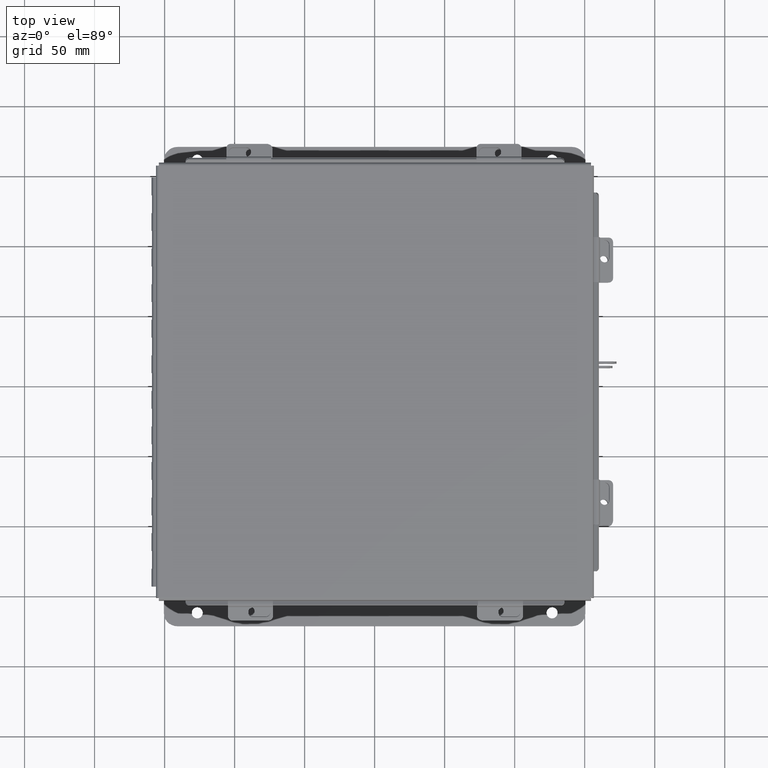
[diagram: clean part render]
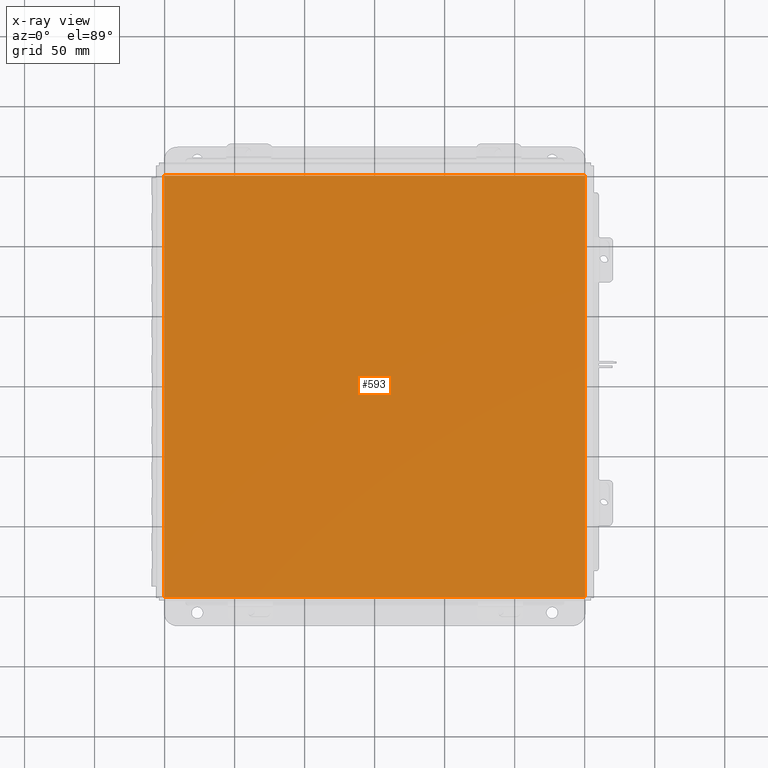
[diagram: x-ray — body ghosted, one internal face saturated and labeled with its STEP entity id]
A machine part, top view, then the same camera in x-ray: the body is ghosted and one INTERNAL B-rep face — a face not visible from any outside direction — is saturated and labeled: STEP entity #593.
In plain terms, the highlighted planar face has unit normal (0, 0, -1).
Its self-contained STEP definition (entity closure, byte-faithful):
#593 = ADVANCED_FACE ( 'NONE', ( #3593 ), #3912, .F. ) ;
#1015 = LINE ( 'NONE', #14169, #15210 ) ;
#1844 = DIRECTION ( 'NONE',  ( -0.0000000000000000000, 1.000000000000000000, -0.0000000000000000000 ) ) ;
#2203 = EDGE_CURVE ( 'NONE', #11765, #3389, #14765, .T. ) ;
#2423 = DIRECTION ( 'NONE',  ( -0.0000000000000000000, -1.000000000000000000, -0.0000000000000000000 ) ) ;
#2581 = CARTESIAN_POINT ( 'NONE',  ( -5.999999999999998200, -5.925300000000000000, 0.0000000000000000000 ) ) ;
#2682 = DIRECTION ( 'NONE',  ( -1.000000000000000000, -0.0000000000000000000, -0.0000000000000000000 ) ) ;
#3231 = EDGE_CURVE ( 'NONE', #10228, #12774, #1015, .T. ) ;
#3389 = VERTEX_POINT ( 'NONE', #13511 ) ;
#3593 = FACE_OUTER_BOUND ( 'NONE', #7322, .T. ) ;
#3912 = PLANE ( 'NONE',  #11583 ) ;
#4681 = EDGE_CURVE ( 'NONE', #10228, #3389, #5377, .T. ) ;
#5377 = LINE ( 'NONE', #2581, #12257 ) ;
#6545 = DIRECTION ( 'NONE',  ( 1.000000000000000000, 0.0000000000000000000, 0.0000000000000000000 ) ) ;
#7322 = EDGE_LOOP ( 'NONE', ( #13092, #9389, #12691, #8781 ) ) ;
#8781 = ORIENTED_EDGE ( 'NONE', *, *, #4681, .T. ) ;
#9386 = CARTESIAN_POINT ( 'NONE',  ( -5.912299999999998300, -5.925299999999999100, 4.268512490100411300E-017 ) ) ;
#9389 = ORIENTED_EDGE ( 'NONE', *, *, #10258, .T. ) ;
#9531 = CARTESIAN_POINT ( 'NONE',  ( 0.0000000000000000000, 0.0000000000000000000, 0.0000000000000000000 ) ) ;
#10228 = VERTEX_POINT ( 'NONE', #9386 ) ;
#10258 = EDGE_CURVE ( 'NONE', #11765, #12774, #13597, .T. ) ;
#10341 = VECTOR ( 'NONE', #2682, 39.37007874015748100 ) ;
#10654 = VECTOR ( 'NONE', #2423, 39.37007874015748100 ) ;
#10896 = CARTESIAN_POINT ( 'NONE',  ( -5.999999999999998200, 5.925300000000000000, 0.0000000000000000000 ) ) ;
#11583 = AXIS2_PLACEMENT_3D ( 'NONE', #9531, #17815, #12298 ) ;
#11765 = VERTEX_POINT ( 'NONE', #15403 ) ;
#12257 = VECTOR ( 'NONE', #6545, 39.37007874015748100 ) ;
#12298 = DIRECTION ( 'NONE',  ( -1.000000000000000000, 0.0000000000000000000, -0.0000000000000000000 ) ) ;
#12691 = ORIENTED_EDGE ( 'NONE', *, *, #3231, .F. ) ;
#12774 = VERTEX_POINT ( 'NONE', #16847 ) ;
#13092 = ORIENTED_EDGE ( 'NONE', *, *, #2203, .F. ) ;
#13511 = CARTESIAN_POINT ( 'NONE',  ( 5.912300000000002800, -5.925300000000000000, 4.268512490100411300E-017 ) ) ;
#13597 = LINE ( 'NONE', #10896, #10341 ) ;
#14169 = CARTESIAN_POINT ( 'NONE',  ( -5.912299999999998300, -5.925300000000000000, 4.268512490100411300E-017 ) ) ;
#14295 = CARTESIAN_POINT ( 'NONE',  ( 5.912300000000002800, 5.925300000000000000, 4.268512490100411300E-017 ) ) ;
#14765 = LINE ( 'NONE', #14295, #10654 ) ;
#15210 = VECTOR ( 'NONE', #1844, 39.37007874015748100 ) ;
#15403 = CARTESIAN_POINT ( 'NONE',  ( 5.912300000000002800, 5.925299999999997300, 4.268512490100411300E-017 ) ) ;
#16847 = CARTESIAN_POINT ( 'NONE',  ( -5.912299999999998300, 5.925300000000000000, 4.268512490100411300E-017 ) ) ;
#17815 = DIRECTION ( 'NONE',  ( 0.0000000000000000000, 0.0000000000000000000, -1.000000000000000000 ) ) ;